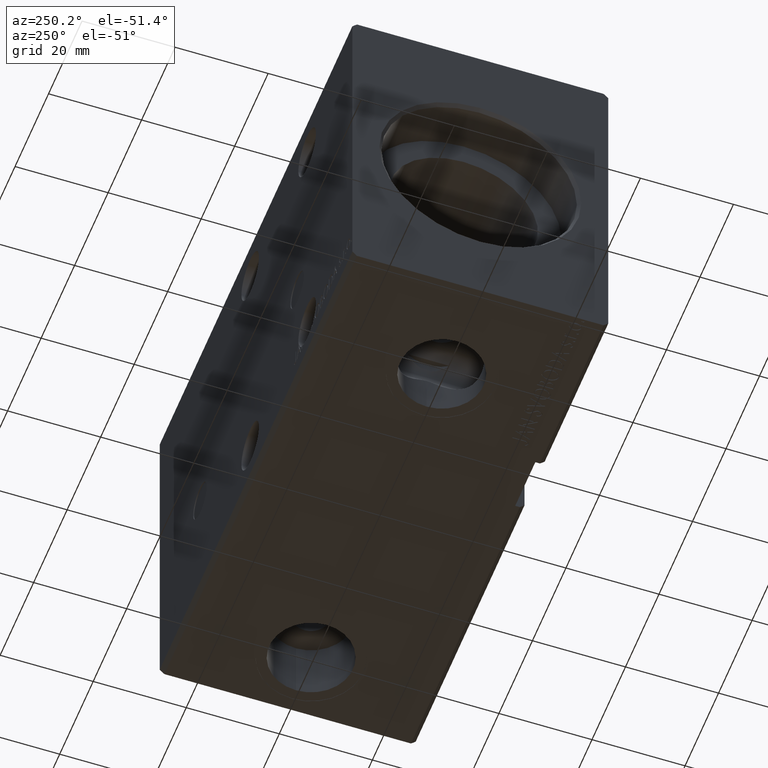
[diagram: clean part render]
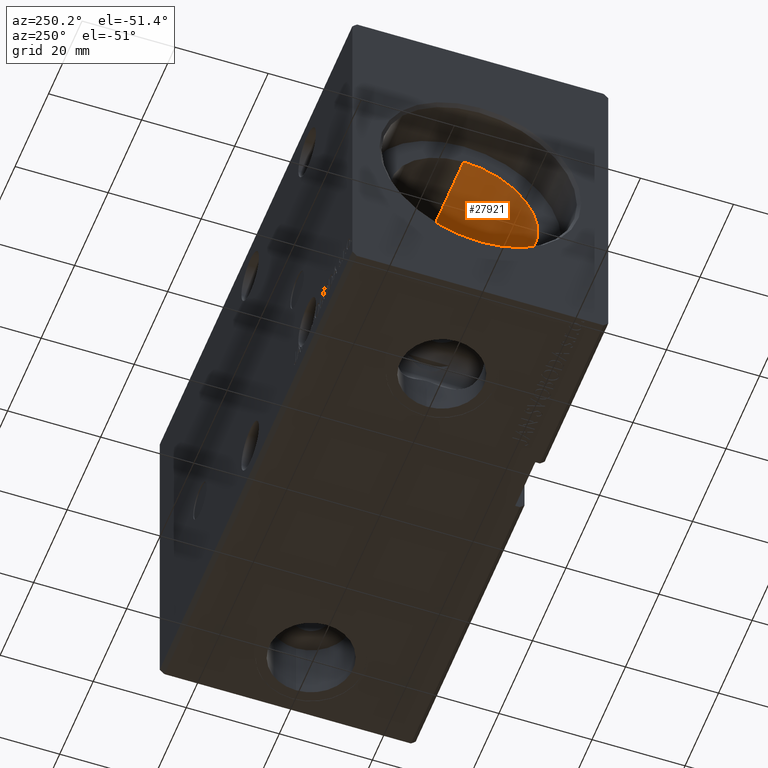
[diagram: same view with one face highlighted and labeled with its STEP entity id]
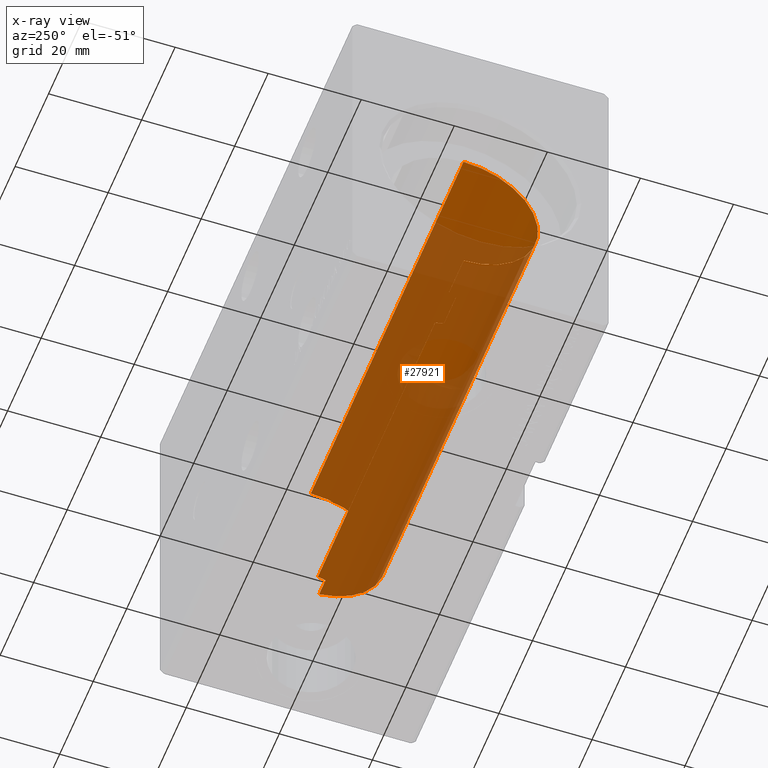
[diagram: x-ray of the same camera — body ghosted, the highlighted face saturated]
A machine part, auxiliary view. The second image highlights one B-rep face of the part: STEP entity #27921.
The next image is the same camera in x-ray: the body ghosted, the highlighted face saturated — about 81% of this face is hidden behind the body in this view.
In plain terms, the highlighted cylindrical surface (partial cylindrical patch) has radius 16 mm, axis along (-1, -0, -0).
Its self-contained STEP definition (entity closure, byte-faithful):
#359 = CARTESIAN_POINT ( 'NONE',  ( 27.00000000000000000, -3.043259601029998868E-15, -16.00000000000000000 ) ) ;
#1896 = CARTESIAN_POINT ( 'NONE',  ( 97.28229384797884904, -1.508314300261685670, -15.93119902641380925 ) ) ;
#2093 = CARTESIAN_POINT ( 'NONE',  ( 97.00000000000000000, 1.959437589923279121E-15, -16.00000000000000000 ) ) ;
#2106 = CARTESIAN_POINT ( 'NONE',  ( 9.999999999999994671, 0.000000000000000000, 16.00000000000000000 ) ) ;
#2775 = CARTESIAN_POINT ( 'NONE',  ( 97.42089396636538368, -1.786057109949259036, -15.89999999999998970 ) ) ;
#3746 = VECTOR ( 'NONE', #6808, 1000.000000000000000 ) ;
#4148 = CARTESIAN_POINT ( 'NONE',  ( 19.28229384797884194, -1.508314300261687002, -15.93119902641381991 ) ) ;
#4627 = AXIS2_PLACEMENT_3D ( 'NONE', #5683, #17255, #11074 ) ;
#4685 = VECTOR ( 'NONE', #10986, 1000.000000000000000 ) ;
#4935 = CARTESIAN_POINT ( 'NONE',  ( 19.42089396636538368, -1.786057109949259036, -15.89999999999998970 ) ) ;
#5025 = ORIENTED_EDGE ( 'NONE', *, *, #30203, .F. ) ;
#5083 = CARTESIAN_POINT ( 'NONE',  ( 97.00000000000000000, -0.3077040434552357762, -16.00000000000000000 ) ) ;
#5683 = CARTESIAN_POINT ( 'NONE',  ( 101.2000000000000028, 0.000000000000000000, 0.000000000000000000 ) ) ;
#6175 = CARTESIAN_POINT ( 'NONE',  ( 19.00000000000000000, -3.533112898183174258E-15, -16.00000000000000000 ) ) ;
#6808 = DIRECTION ( 'NONE',  ( 1.000000000000000000, 0.000000000000000000, 0.000000000000000000 ) ) ;
#6837 = LINE ( 'NONE', #16208, #29365 ) ;
#6854 = VERTEX_POINT ( 'NONE', #29221 ) ;
#7239 = DIRECTION ( 'NONE',  ( -1.000000000000000000, -0.000000000000000000, -0.000000000000000000 ) ) ;
#7471 = CARTESIAN_POINT ( 'NONE',  ( 27.00000000000000000, -0.3073137169939997304, -16.00000000000000000 ) ) ;
#7732 = CIRCLE ( 'NONE', #15340, 16.00000000000000000 ) ;
#8303 = CARTESIAN_POINT ( 'NONE',  ( 101.2000000000000028, -1.786057109949259036, -15.89999999999998970 ) ) ;
#8411 = EDGE_CURVE ( 'NONE', #11130, #30427, #20992, .T. ) ;
#8945 = CARTESIAN_POINT ( 'NONE',  ( 101.2000000000000028, 1.959434878635765131E-15, -16.00000000000000000 ) ) ;
#10664 = CARTESIAN_POINT ( 'NONE',  ( 26.82224888748791969, -1.219193417833760451, -15.95634149554536130 ) ) ;
#10858 = CARTESIAN_POINT ( 'NONE',  ( 9.999999999999994671, 1.959434878635765131E-15, -16.00000000000000000 ) ) ;
#10986 = DIRECTION ( 'NONE',  ( -1.000000000000000000, -0.000000000000000000, -0.000000000000000000 ) ) ;
#11074 = DIRECTION ( 'NONE',  ( 0.000000000000000000, 0.000000000000000000, 1.000000000000000000 ) ) ;
#11130 = VERTEX_POINT ( 'NONE', #2775 ) ;
#13318 = CARTESIAN_POINT ( 'NONE',  ( 19.00000000000000000, -3.533112898183174258E-15, -16.00000000000000000 ) ) ;
#13649 = CARTESIAN_POINT ( 'NONE',  ( 27.00000000000000000, -3.043259601029998868E-15, -16.00000000000000000 ) ) ;
#13848 = CARTESIAN_POINT ( 'NONE',  ( 26.71754120084598938, -1.508644848340498168, -15.93116189573794195 ) ) ;
#14022 = DIRECTION ( 'NONE',  ( 1.000000000000000000, 0.000000000000000000, 0.000000000000000000 ) ) ;
#14601 = EDGE_LOOP ( 'NONE', ( #35515, #31554, #37837, #24132, #32305, #20203, #35273, #5025, #32842, #34961 ) ) ;
#14772 = CARTESIAN_POINT ( 'NONE',  ( 101.2000000000000028, 0.000000000000000000, 16.00000000000000000 ) ) ;
#14815 = DIRECTION ( 'NONE',  ( 0.000000000000000000, 0.000000000000000000, 1.000000000000000000 ) ) ;
#15340 = AXIS2_PLACEMENT_3D ( 'NONE', #23322, #28720, #29307 ) ;
#16208 = CARTESIAN_POINT ( 'NONE',  ( 101.2000000000000028, 1.959434878635765131E-15, -16.00000000000000000 ) ) ;
#16301 = CARTESIAN_POINT ( 'NONE',  ( 19.17803745058905562, -1.219576022118254111, -15.95627408098855504 ) ) ;
#16624 = LINE ( 'NONE', #25988, #29675 ) ;
#16966 = LINE ( 'NONE', #38298, #4685 ) ;
#17255 = DIRECTION ( 'NONE',  ( -1.000000000000000000, -0.000000000000000000, -0.000000000000000000 ) ) ;
#17288 = VERTEX_POINT ( 'NONE', #6175 ) ;
#17849 = EDGE_CURVE ( 'NONE', #30427, #21788, #19117, .T. ) ;
#18361 = CARTESIAN_POINT ( 'NONE',  ( 19.00000000000000355, -0.3077040434552402726, -16.00000000000000355 ) ) ;
#18393 = CARTESIAN_POINT ( 'NONE',  ( 26.57910603363461277, -1.786057109949259036, -15.89999999999998970 ) ) ;
#18587 = CARTESIAN_POINT ( 'NONE',  ( 101.2000000000000028, -1.786057109949259036, -15.89999999999998970 ) ) ;
#19117 = CIRCLE ( 'NONE', #24208, 16.00000000000000000 ) ;
#19451 = CARTESIAN_POINT ( 'NONE',  ( 26.57910603363461277, -1.786057109949259036, -15.89999999999998970 ) ) ;
#19645 = CARTESIAN_POINT ( 'NONE',  ( 26.96441505284474971, -0.6159808737045043836, -15.99099227927343314 ) ) ;
#19705 = VERTEX_POINT ( 'NONE', #4935 ) ;
#19846 = CARTESIAN_POINT ( 'NONE',  ( 97.42089396636538368, -1.786057109949259036, -15.89999999999998970 ) ) ;
#20203 = ORIENTED_EDGE ( 'NONE', *, *, #31539, .T. ) ;
#20205 = B_SPLINE_CURVE_WITH_KNOTS ( 'NONE', 3,
 ( #19846, #1896, #25433, #31807, #5083, #2093 ),
 .UNSPECIFIED., .F., .F.,
 ( 4, 2, 4 ),
 ( 0.000000000000000000, 0.0009228726212815560777, 0.001845745242563112155 ),
 .UNSPECIFIED. ) ;
#20419 = CARTESIAN_POINT ( 'NONE',  ( 101.2000000000000028, 0.000000000000000000, 0.000000000000000000 ) ) ;
#20992 = LINE ( 'NONE', #18587, #3746 ) ;
#21543 = CARTESIAN_POINT ( 'NONE',  ( 19.03643380211522995, -0.6204082509210444574, -15.99078302721733102 ) ) ;
#21788 = VERTEX_POINT ( 'NONE', #14772 ) ;
#22665 = EDGE_CURVE ( 'NONE', #25488, #30112, #30713, .T. ) ;
#22708 = VERTEX_POINT ( 'NONE', #10858 ) ;
#23322 = CARTESIAN_POINT ( 'NONE',  ( 9.999999999999994671, 0.000000000000000000, 0.000000000000000000 ) ) ;
#23481 = EDGE_CURVE ( 'NONE', #11130, #6854, #20205, .T. ) ;
#23640 = FACE_OUTER_BOUND ( 'NONE', #14601, .T. ) ;
#23710 = DIRECTION ( 'NONE',  ( -1.000000000000000000, -0.000000000000000000, -0.000000000000000000 ) ) ;
#24132 = ORIENTED_EDGE ( 'NONE', *, *, #34949, .F. ) ;
#24166 = EDGE_CURVE ( 'NONE', #22708, #25927, #7732, .T. ) ;
#24208 = AXIS2_PLACEMENT_3D ( 'NONE', #20419, #29779, #14815 ) ;
#24771 = EDGE_CURVE ( 'NONE', #6854, #25488, #6837, .T. ) ;
#25433 = CARTESIAN_POINT ( 'NONE',  ( 97.17803745058905918, -1.219576022118251890, -15.95627408098855149 ) ) ;
#25488 = VERTEX_POINT ( 'NONE', #359 ) ;
#25591 = B_SPLINE_CURVE_WITH_KNOTS ( 'NONE', 3,
 ( #36694, #4148, #16301, #21543, #18361, #13318 ),
 .UNSPECIFIED., .F., .F.,
 ( 4, 2, 4 ),
 ( 0.000000000000000000, 0.0009228726212815540177, 0.001845745242563107602 ),
 .UNSPECIFIED. ) ;
#25927 = VERTEX_POINT ( 'NONE', #2106 ) ;
#25988 = CARTESIAN_POINT ( 'NONE',  ( 101.2000000000000028, -1.786057109949259036, -15.89999999999998970 ) ) ;
#27921 = ADVANCED_FACE ( 'NONE', ( #23640 ), #32203, .F. ) ;
#28720 = DIRECTION ( 'NONE',  ( -1.000000000000000000, 0.000000000000000000, 0.000000000000000000 ) ) ;
#29221 = CARTESIAN_POINT ( 'NONE',  ( 97.00000000000000000, 1.959437589923279121E-15, -16.00000000000000000 ) ) ;
#29307 = DIRECTION ( 'NONE',  ( 0.000000000000000000, 0.000000000000000000, 1.000000000000000000 ) ) ;
#29365 = VECTOR ( 'NONE', #7239, 1000.000000000000000 ) ;
#29675 = VECTOR ( 'NONE', #14022, 1000.000000000000000 ) ;
#29779 = DIRECTION ( 'NONE',  ( -1.000000000000000000, 0.000000000000000000, 0.000000000000000000 ) ) ;
#30112 = VERTEX_POINT ( 'NONE', #18393 ) ;
#30203 = EDGE_CURVE ( 'NONE', #21788, #25927, #16966, .T. ) ;
#30427 = VERTEX_POINT ( 'NONE', #8303 ) ;
#30713 = B_SPLINE_CURVE_WITH_KNOTS ( 'NONE', 3,
 ( #13649, #7471, #19645, #10664, #13848, #19451 ),
 .UNSPECIFIED., .F., .F.,
 ( 4, 2, 4 ),
 ( 0.001845745242563114324, 0.002767447188281244030, 0.003689149133999373303 ),
 .UNSPECIFIED. ) ;
#31539 = EDGE_CURVE ( 'NONE', #17288, #22708, #36254, .T. ) ;
#31554 = ORIENTED_EDGE ( 'NONE', *, *, #24771, .T. ) ;
#31807 = CARTESIAN_POINT ( 'NONE',  ( 97.03643380211522640, -0.6204082509210404606, -15.99078302721733102 ) ) ;
#31871 = VECTOR ( 'NONE', #23710, 1000.000000000000000 ) ;
#32203 = CYLINDRICAL_SURFACE ( 'NONE', #4627, 16.00000000000000000 ) ;
#32305 = ORIENTED_EDGE ( 'NONE', *, *, #38634, .T. ) ;
#32842 = ORIENTED_EDGE ( 'NONE', *, *, #17849, .F. ) ;
#34949 = EDGE_CURVE ( 'NONE', #19705, #30112, #16624, .T. ) ;
#34961 = ORIENTED_EDGE ( 'NONE', *, *, #8411, .F. ) ;
#35273 = ORIENTED_EDGE ( 'NONE', *, *, #24166, .T. ) ;
#35515 = ORIENTED_EDGE ( 'NONE', *, *, #23481, .T. ) ;
#36254 = LINE ( 'NONE', #8945, #31871 ) ;
#36694 = CARTESIAN_POINT ( 'NONE',  ( 19.42089396636538368, -1.786057109949259036, -15.89999999999998970 ) ) ;
#37837 = ORIENTED_EDGE ( 'NONE', *, *, #22665, .T. ) ;
#38298 = CARTESIAN_POINT ( 'NONE',  ( 101.2000000000000028, 0.000000000000000000, 16.00000000000000000 ) ) ;
#38634 = EDGE_CURVE ( 'NONE', #19705, #17288, #25591, .T. ) ;